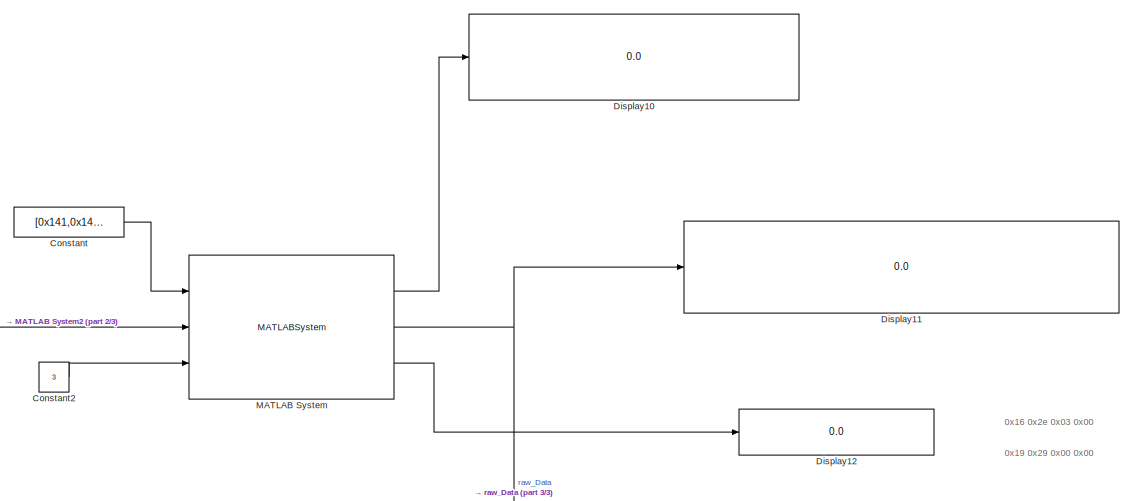
[diagram: root canvas - part 1/3, top center region]
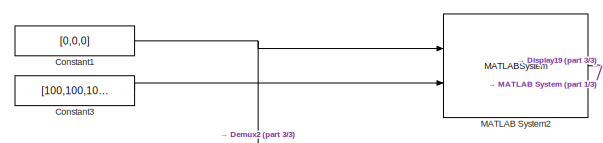
[diagram: root canvas - part 2/3, middle left region]
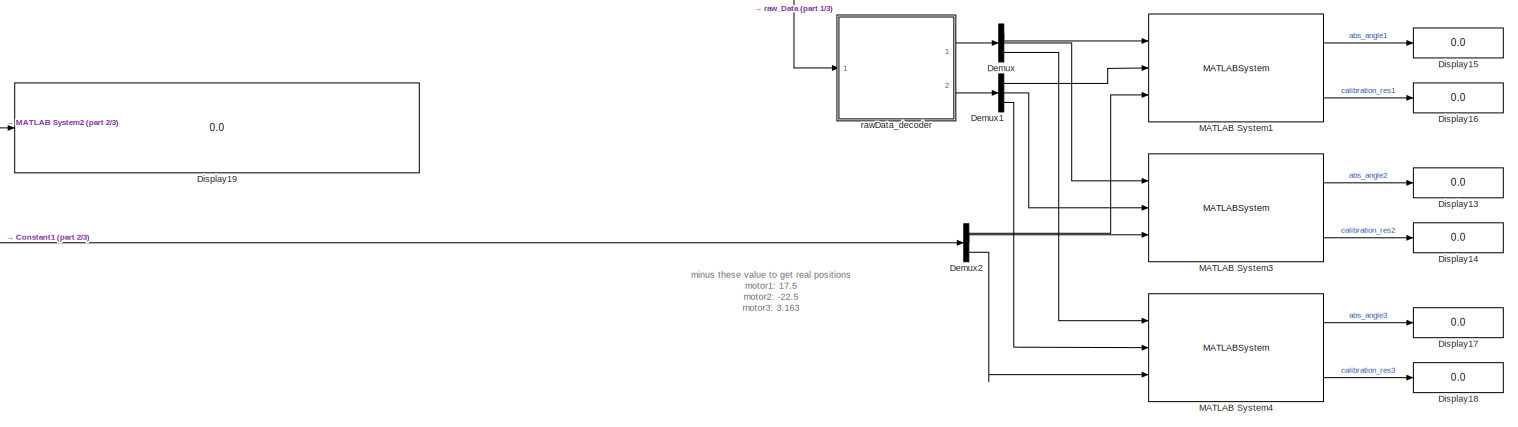
[diagram: root canvas - part 3/3, full width, bottom band]
MODEL slx_785a3a841348
KIND model
CONFIG AbsTol = auto
CONFIG EnableMultiTasking = on
CONFIG FixedStep = 0.005
CONFIG MaxStep = auto
CONFIG MinStep = auto
CONFIG RelTol = 1e-3
CONFIG SampleTimeConstraint = Unconstrained
CONFIG SolverName = FixedStepAuto
CONFIG StartTime = 0.0
CONFIG StopTime = 300
BLOCK [Constant] Constant
  Value = [0x141,0x142,0x143]
BLOCK [Constant] Constant1
  Value = [0,0,0]
BLOCK [Constant] Constant2
  OutDataTypeStr = int32
  Value = 3
BLOCK [Constant] Constant3
  Value = [100,100,100]
BLOCK [Demux] Demux
  Outputs = 3
  Ports = [1, 3]
BLOCK [Demux] Demux1
  Outputs = 3
  Ports = [1, 3]
BLOCK [Demux] Demux2
  Outputs = 3
  Ports = [1, 3]
BLOCK [Display] Display10
  Decimation = 1
  Format = hex (Stored Integer)
  Ports = [1]
BLOCK [Display] Display11
  Decimation = 1
  Format = hex (Stored Integer)
  Ports = [1]
BLOCK [Display] Display12
  Decimation = 1
  Format = hex (Stored Integer)
  Ports = [1]
BLOCK [Display] Display13
  Decimation = 1
  Ports = [1]
BLOCK [Display] Display14
  Decimation = 1
  Ports = [1]
BLOCK [Display] Display15
  Decimation = 1
  Ports = [1]
BLOCK [Display] Display16
  Decimation = 1
  Ports = [1]
BLOCK [Display] Display17
  Decimation = 1
  Ports = [1]
BLOCK [Display] Display18
  Decimation = 1
  Ports = [1]
BLOCK [Display] Display19
  Decimation = 1
  Format = hex (Stored Integer)
  Ports = [1]
BLOCK [MATLABSystem] MATLAB System
  MaskDisplay = disp('CAN_Driver');\nport_label('input',1,'canID_array');\nport_label('input',2,'send_RawData');\nport_label('input',3,'dev_Num');\nport_label('output',1,'recv_ID');\nport_label('output',2,'recv_rawData');\nport_label('output',3,'err');
  MaskType = canSendRecv
  Ports = [3, 3]
  System = canSendRecv
  canPort = can1
BLOCK [MATLABSystem] MATLAB System1
  MaskDisplay = disp('MotorAngle');\nport_label('input',1,'speed');\nport_label('input',2,'sgl_angle');\nport_label('input',3,'pos_des');\nport_label('output',1,'abs_angle');\nport_label('output',2,'calibration');  <repeated x3 — deduplicated; at blocks: MATLAB System1, MATLAB System3, MATLAB System4>
  MaskType = MotorAngle
  Ports = [3, 2]
  SimulateUsing = Code generation
  System = MotorAngle
  angleOff = -17.5
BLOCK [MATLABSystem] MATLAB System2
  MaskDisplay = disp('Multi_posCtr');\nport_label('input',1,'pos_arr');\nport_label('input',2,'speed_arr');\nport_label('output',1,'cmd');
  MaskType = Multi_posCtr
  Ports = [2, 1]
  SimulateUsing = Code generation
  System = Multi_posCtr
BLOCK [MATLABSystem] MATLAB System3
  MaskType = MotorAngle
  Ports = [3, 2]
  SimulateUsing = Code generation
  System = MotorAngle
  angleOff = 22.5
BLOCK [MATLABSystem] MATLAB System4
  MaskType = MotorAngle
  Ports = [3, 2]
  SimulateUsing = Code generation
  System = MotorAngle
  angleOff = -3.163
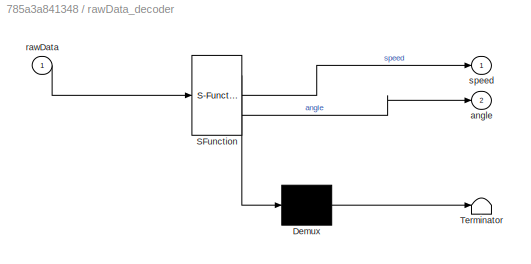
BLOCK [SubSystem] rawData_decoder
  ErrorFcn = Stateflow.Translate.translate
  PermitHierarchicalResolution = ExplicitOnly
  Ports = [1, 2]
  RequestExecContextInheritance = off
  SFBlockType = MATLAB Function
  TreatAsAtomicUnit = on
BLOCK [Demux] rawData_decoder/ Demux 
  Outputs = 1
  Ports = [1, 1]
BLOCK [S-Function] rawData_decoder/ SFunction 
  EnableBusSupport = on
  FunctionName = sf_sfun
  PortCounts = [1 3]
  Ports = [1, 3]
  SFcnIsStateOwnerBlock = off
  SFunctionDeploymentMode = off
  Tag = Stateflow S-Function 3
BLOCK [Terminator] rawData_decoder/ Terminator 
BLOCK [Outport] rawData_decoder/angle
  Port = 2
BLOCK [Inport] rawData_decoder/rawData
BLOCK [Outport] rawData_decoder/speed
ANNOTATION (root): 0x16 0x2e 0x03 0x00
ANNOTATION (root): 0x19 0x29 0x00 0x00
ANNOTATION (root): minus these value to get real positions motor1: 17.5 motor2: -22.5 motor3: 3.163
NET Constant1:1 -> Demux2:1, MATLAB System2:1
LINE Constant2:1 -> MATLAB System:3
LINE Constant3:1 -> MATLAB System2:2
LINE Constant:1 -> MATLAB System:1
LINE Demux1:1 -> MATLAB System1:2
LINE Demux1:2 -> MATLAB System3:2
LINE Demux1:3 -> MATLAB System4:2
LINE Demux2:1 -> MATLAB System1:3
LINE Demux2:2 -> MATLAB System3:3
LINE Demux2:3 -> MATLAB System4:3
LINE Demux:1 -> MATLAB System1:1
LINE Demux:2 -> MATLAB System3:1
LINE Demux:3 -> MATLAB System4:1
LINE MATLAB System1:1 -> Display15:1
LINE MATLAB System1:2 -> Display16:1
NET MATLAB System2:1 -> Display19:1, MATLAB System:2
LINE MATLAB System3:1 -> Display13:1
LINE MATLAB System3:2 -> Display14:1
LINE MATLAB System4:1 -> Display17:1
LINE MATLAB System4:2 -> Display18:1
LINE MATLAB System:1 -> Display10:1
NET MATLAB System:2 -> Display11:1, rawData_decoder:1
LINE MATLAB System:3 -> Display12:1
LINE rawData_decoder:1 -> Demux:1
LINE rawData_decoder:2 -> Demux1:1
note: NET lines group one-source signal fan-out (src -> all destinations, sorted); 1:1 wires keep LINE
CHART rawData_decoder states=1 transitions=1
  STATE_LABEL 'eML_blk_kernel()'
  STATE_LABEL "SCRIPT:\nfunction [speed,angle] = fcn(rawData)\n% angle : single loop position\n% speed : speed before or after the reducer?\nangle=zeros(3,1);\nspeed=zeros(3,1);\nfor i=1:1:3\n    idx=i*8-7;\n    angle(i) = double(typecast(rawData(idx+6:idx+7),'uint16'))/65535*360;\n    speed(i) = double(typecast(rawData(idx+4:idx+5),'int16'));\nend\n"
CHART  states=0 transitions=0
